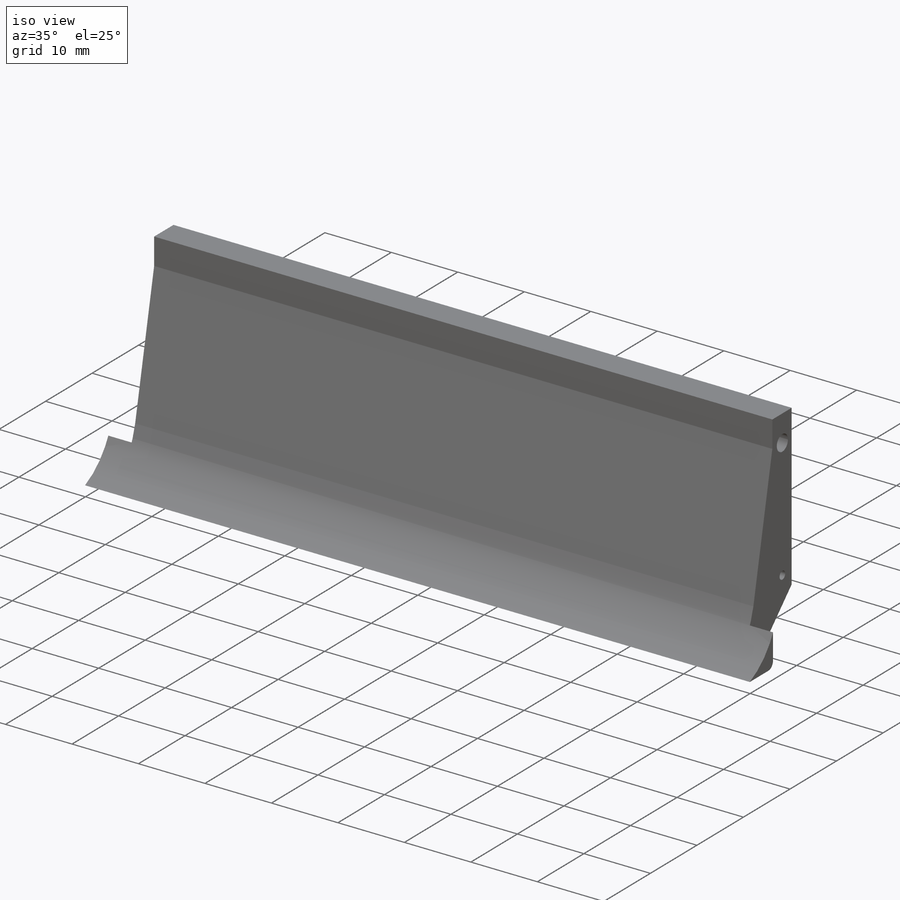
[diagram: iso view]
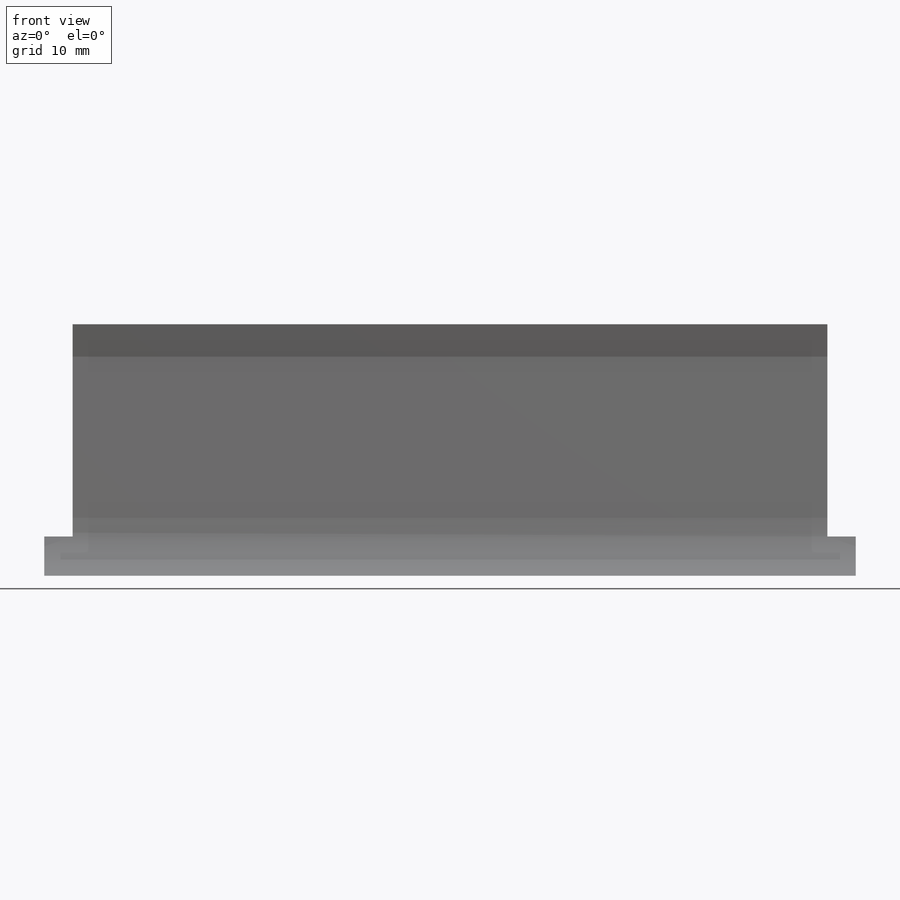
[diagram: front view]
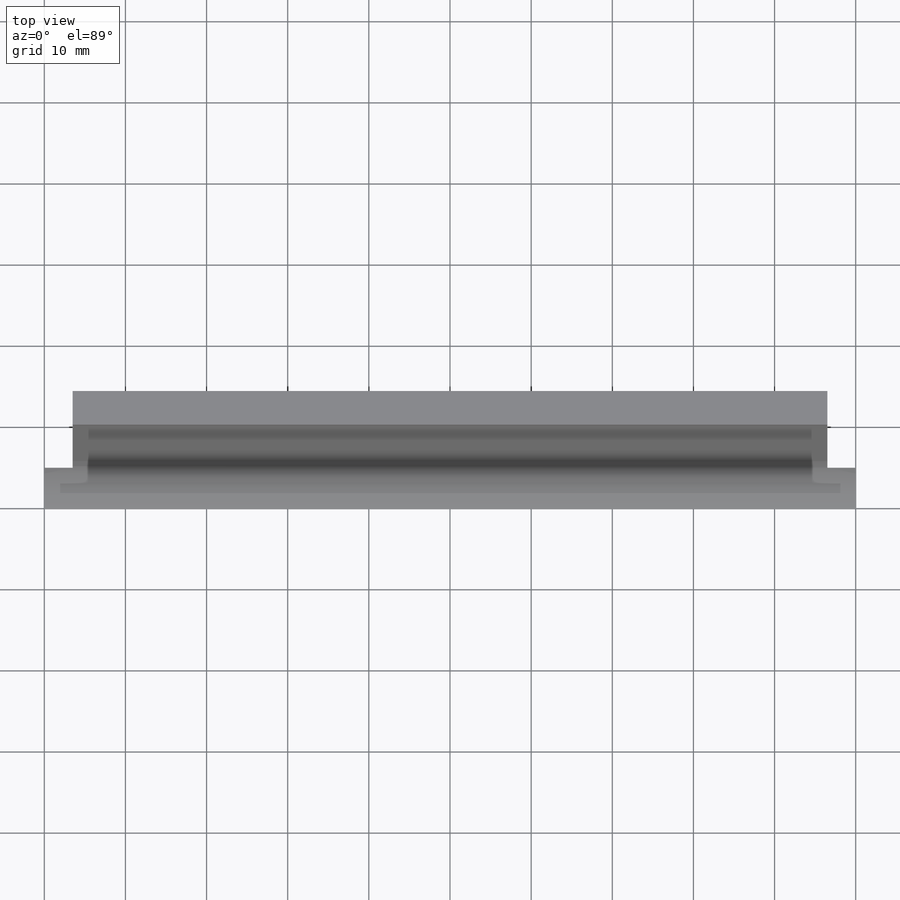
[diagram: top view]
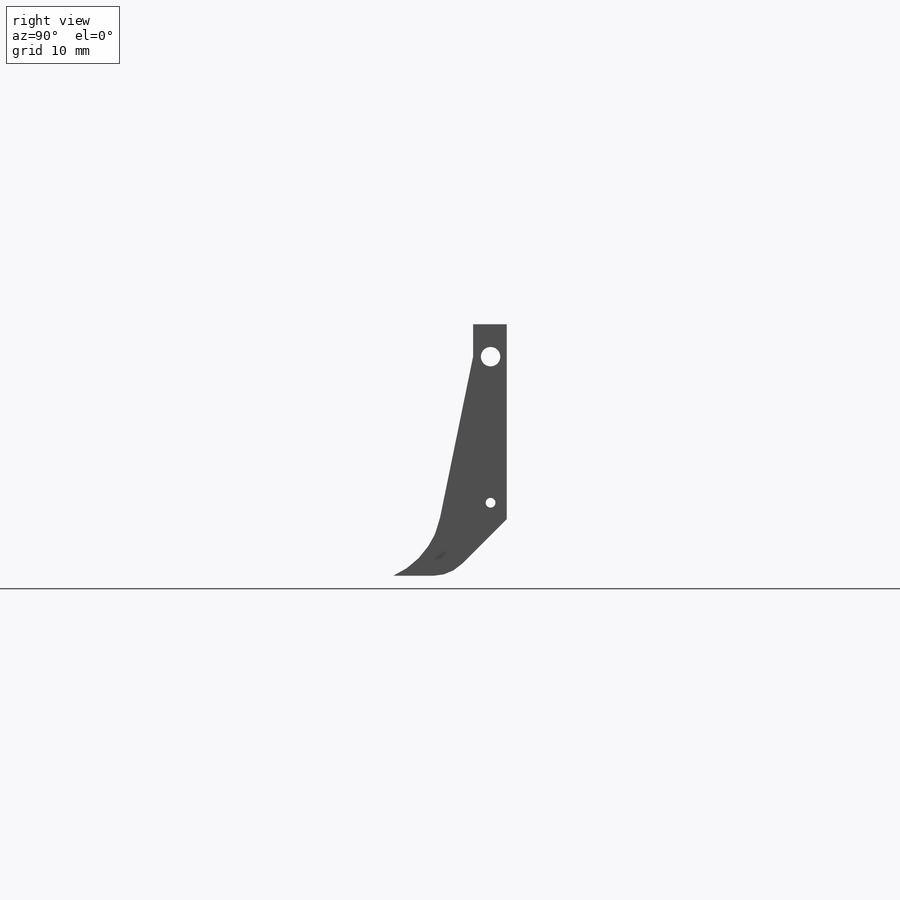
[diagram: right view]
SOLIDWORKS PART (.sldprt)
format: sldprt  version: not decoded by parser v0  size: 257,024 bytes
history: native  units: mm
features: sketch x9, cut_extrude x6, fillet x4, extrude x3, material x1, chamfer x1 (+12 scaffold rows collapsed)
feature tree (36):
  scaffold x12  (default folders/planes/origin — collapsed)
  material  "Material <not specified>"
  sketch  "Sketch1"  dims[D1=27.0mm D2=14.0mm]
  extrude  "Boss-Extrude1"  Depth=100mm
  sketch  "Sketch2"
  cut_extrude  "Cut-Extrude1"  Depth=100mm
  fillet  "Fillet1"  Radius=10mm
  sketch  "Sketch4"
  extrude  "Boss-Extrude2"  Depth=4mm
  sketch  "Sketch5"  dims[c1.D1=~0.894591mm c1.D2=~24.036313mm c2.D1=2.0mm c2.D2=2.0mm c2.D3=9.0mm c2.D4=18.0mm]
  cut_extrude  "Cut-Extrude2"  Depth=100mm
  chamfer  "Chamfer1"  Distance=7mm Angle=45deg
  sketch  "Sketch6"
  cut_extrude  "Cut-Extrude3"  Depth=3.5mm
  sketch  "Sketch8"
  extrude  "Boss-Extrude3"  Depth=4mm
  sketch  "Sketch9"
  cut_extrude  "Cut-Extrude4"  Depth=3.5mm
  sketch  "Sketch10"  dims[D1=5.0mm]
  cut_extrude  "Cut-Extrude5"  Depth=3.5mm
  sketch  "Sketch11"  dims[D1=5.0mm]
  cut_extrude  "Cut-Extrude7"  Depth=3.5mm
  fillet  "Fillet2"  Radius=5mm
  fillet  "Fillet5"  Radius=1mm
  fillet  "Fillet6"  Radius=1mm
decode coverage: 18 of 23 modeling features carry decoded parameters
note: ~ marks probable driven/reference dimensions
note: suppression state not decoded; provenance and decode notes live in map.json
